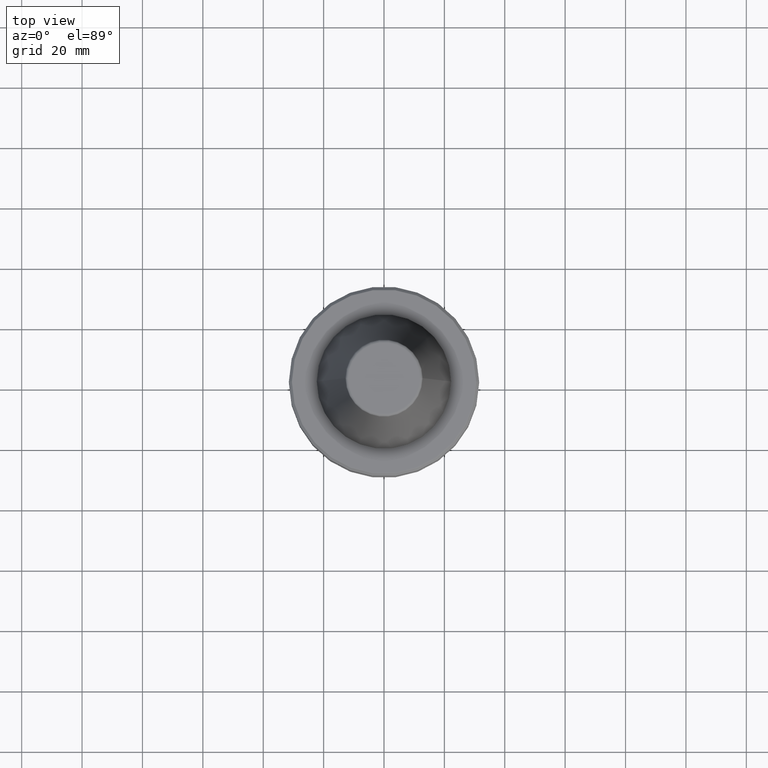
[diagram: clean part render]
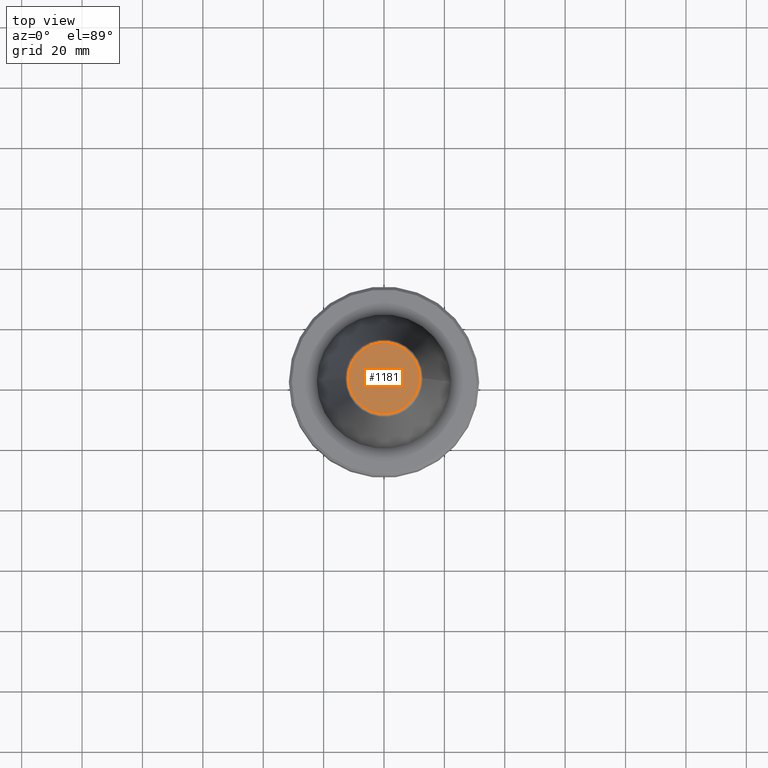
[diagram: same view with one face highlighted and labeled with its STEP entity id]
A machine part, top view. The second image highlights one B-rep face of the part: STEP entity #1181.
In plain terms, the highlighted planar face has unit normal (0, 0, 1).
Its self-contained STEP definition (entity closure, byte-faithful):
#33 = DIRECTION ( 'NONE',  ( -0.0000000000000000000, -0.0000000000000000000, -1.000000000000000000 ) ) ;
#77 = DIRECTION ( 'NONE',  ( -1.000000000000000000, 0.0000000000000000000, 0.0000000000000000000 ) ) ;
#108 = CARTESIAN_POINT ( 'NONE',  ( -11.82266672057005500, 0.0000000000000000000, 65.40000000000000600 ) ) ;
#124 = AXIS2_PLACEMENT_3D ( 'NONE', #826, #1138, #216 ) ;
#182 = FACE_OUTER_BOUND ( 'NONE', #1032, .T. ) ;
#216 = DIRECTION ( 'NONE',  ( 1.000000000000000000, 0.0000000000000000000, -0.0000000000000000000 ) ) ;
#383 = PLANE ( 'NONE',  #124 ) ;
#428 = EDGE_CURVE ( 'NONE', #437, #854, #639, .T. ) ;
#437 = VERTEX_POINT ( 'NONE', #709 ) ;
#448 = CIRCLE ( 'NONE', #1033, 11.82266672057005500 ) ;
#538 = EDGE_CURVE ( 'NONE', #854, #437, #448, .T. ) ;
#639 = CIRCLE ( 'NONE', #862, 11.82266672057005500 ) ;
#662 = CARTESIAN_POINT ( 'NONE',  ( 0.0000000000000000000, 0.0000000000000000000, 65.40000000000000600 ) ) ;
#709 = CARTESIAN_POINT ( 'NONE',  ( 11.82266672057005500, 1.508450503654655900E-015, 65.40000000000000600 ) ) ;
#714 = CARTESIAN_POINT ( 'NONE',  ( 0.0000000000000000000, 0.0000000000000000000, 65.40000000000000600 ) ) ;
#762 = DIRECTION ( 'NONE',  ( -1.000000000000000000, 0.0000000000000000000, 0.0000000000000000000 ) ) ;
#785 = ORIENTED_EDGE ( 'NONE', *, *, #428, .F. ) ;
#826 = CARTESIAN_POINT ( 'NONE',  ( 0.0000000000000000000, 0.0000000000000000000, 65.40000000000000600 ) ) ;
#854 = VERTEX_POINT ( 'NONE', #108 ) ;
#862 = AXIS2_PLACEMENT_3D ( 'NONE', #714, #1118, #77 ) ;
#1032 = EDGE_LOOP ( 'NONE', ( #1137, #785 ) ) ;
#1033 = AXIS2_PLACEMENT_3D ( 'NONE', #662, #33, #762 ) ;
#1118 = DIRECTION ( 'NONE',  ( -0.0000000000000000000, -0.0000000000000000000, -1.000000000000000000 ) ) ;
#1137 = ORIENTED_EDGE ( 'NONE', *, *, #538, .F. ) ;
#1138 = DIRECTION ( 'NONE',  ( 0.0000000000000000000, 0.0000000000000000000, 1.000000000000000000 ) ) ;
#1181 = ADVANCED_FACE ( 'NONE', ( #182 ), #383, .T. ) ;